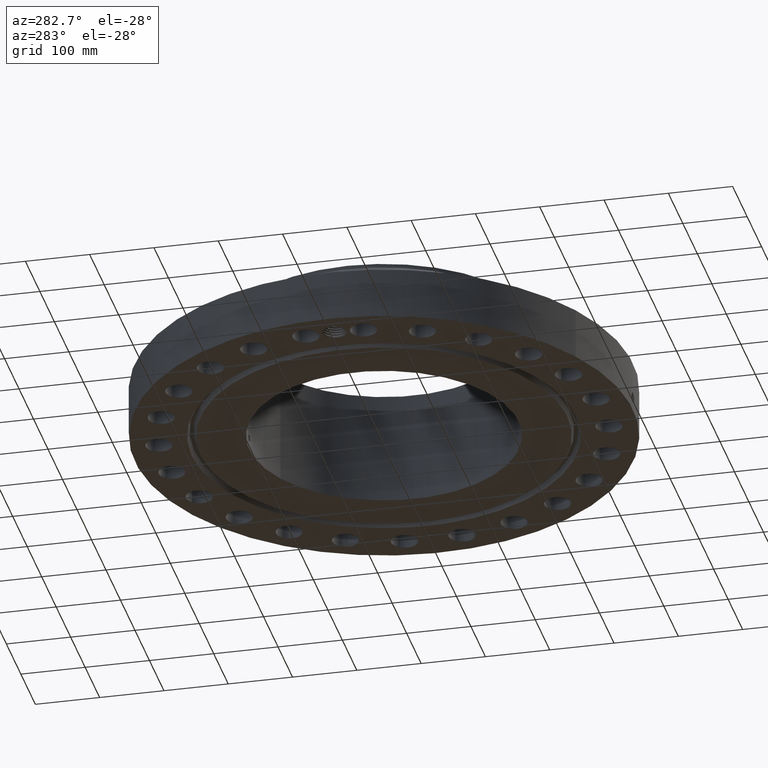
[diagram: clean part render]
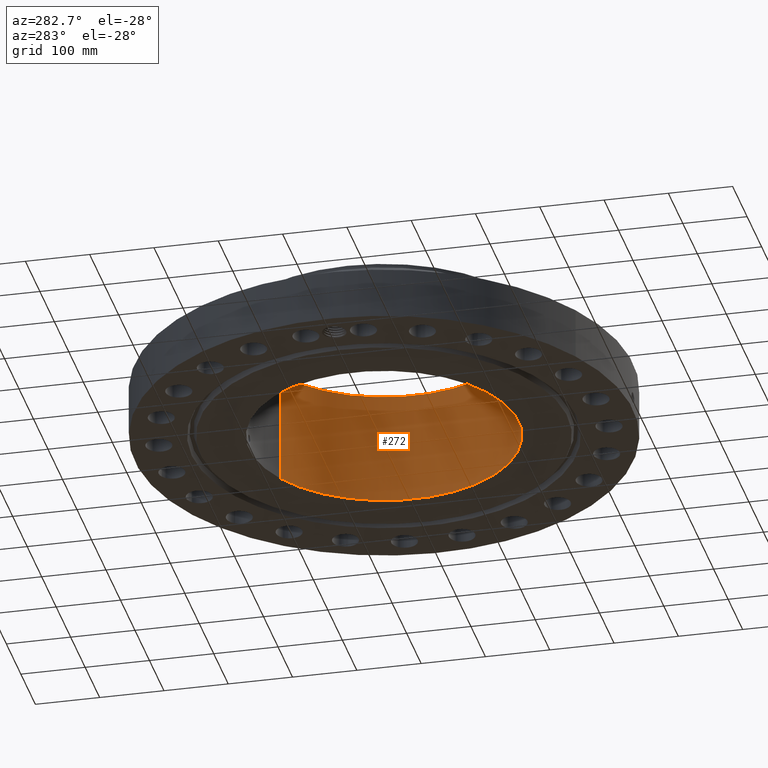
[diagram: same view with one face highlighted and labeled with its STEP entity id]
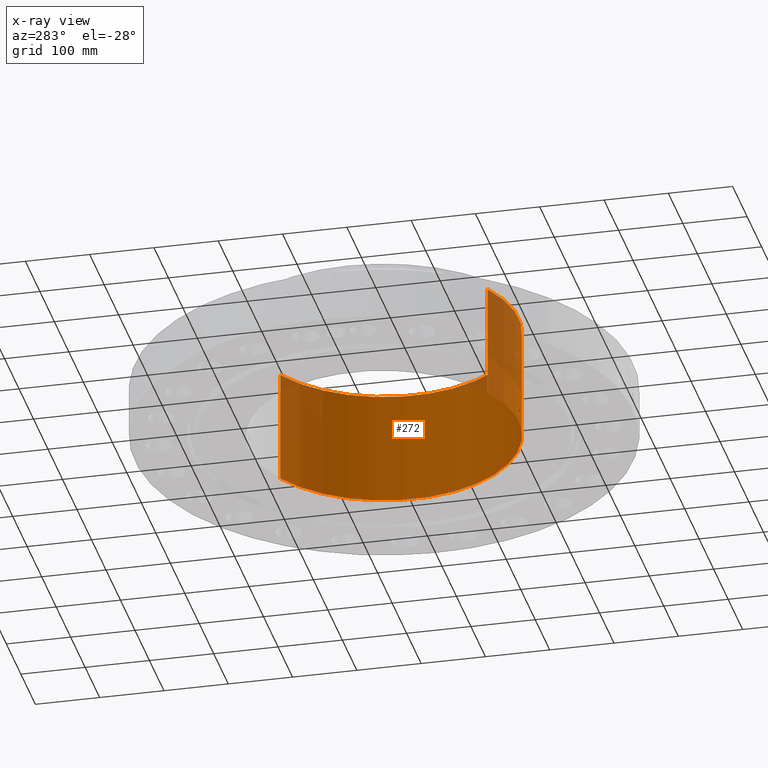
[diagram: x-ray of the same camera — body ghosted, the highlighted face saturated]
A machine part, auxiliary view. The second image highlights one B-rep face of the part: STEP entity #272.
The next image is the same camera in x-ray: the body ghosted, the highlighted face saturated — about 10% of this face is hidden behind the body in this view.
In plain terms, the highlighted cylindrical surface (partial cylindrical patch) has radius 209.55 mm, axis along (0, 0, -1).
Its self-contained STEP definition (entity closure, byte-faithful):
#232=AXIS2_PLACEMENT_3D('Cylinder Axis2P3D',#229,#230,#231) ;
#236=AXIS2_PLACEMENT_3D('Circle Axis2P3D',#234,#235,$) ;
#252=AXIS2_PLACEMENT_3D('Circle Axis2P3D',#250,#251,$) ;
#81=CARTESIAN_POINT('Control Point',(0.219395640473,-8.24708224486,0.630143615351)) ;
#82=CARTESIAN_POINT('Control Point',(0.19444317711,-8.24774605074,0.584468437538)) ;
#83=CARTESIAN_POINT('Control Point',(0.157605883801,-8.24863158637,0.545289194378)) ;
#84=CARTESIAN_POINT('Control Point',(0.111109607939,-8.24949278363,0.516757610524)) ;
#85=CARTESIAN_POINT('Control Point',(0.0336754004948,-8.2501779888,0.494117709491)) ;
#86=CARTESIAN_POINT('Control Point',(-0.0446690011562,-8.2499412276,0.501943340072)) ;
#87=CARTESIAN_POINT('Control Point',(-0.0702981658894,-8.24975742737,0.507955592299)) ;
#88=CARTESIAN_POINT('Control Point',(-0.143953515904,-8.24894517953,0.535786260454)) ;
#89=CARTESIAN_POINT('Control Point',(-0.203240709338,-8.24761932397,0.590498544337)) ;
#90=CARTESIAN_POINT('Control Point',(-0.232206730902,-8.2467496542,0.636736019688)) ;
#91=CARTESIAN_POINT('Control Point',(-0.255840009403,-8.24603466111,0.714883314645)) ;
#92=CARTESIAN_POINT('Control Point',(-0.248283666439,-8.24626308008,0.794249659747)) ;
#93=CARTESIAN_POINT('Control Point',(-0.242049877743,-8.24645425883,0.820813529062)) ;
#94=CARTESIAN_POINT('Control Point',(-0.232316018872,-8.24673852637,0.846205790637)) ;
#95=CARTESIAN_POINT('Control Point',(-0.219395640473,-8.24708224486,0.869856384655)) ;
#96=CARTESIAN_POINT('Vertex',(0.219395640473,-8.24708224486,0.630143615351)) ;
#98=CARTESIAN_POINT('Vertex',(-0.219395640473,-8.24708224486,0.869856384655)) ;
#206=CARTESIAN_POINT('Control Point',(-0.219395640473,-8.24708224486,0.869856384655)) ;
#207=CARTESIAN_POINT('Control Point',(-0.194443177114,-8.24774605074,0.91553156246)) ;
#208=CARTESIAN_POINT('Control Point',(-0.157605883813,-8.24863158637,0.954710805615)) ;
#209=CARTESIAN_POINT('Control Point',(-0.111109607925,-8.24949278363,0.983242389485)) ;
#210=CARTESIAN_POINT('Control Point',(-0.0336754004932,-8.2501779888,1.00588229051)) ;
#211=CARTESIAN_POINT('Control Point',(0.0446690011462,-8.2499412276,0.998056659936)) ;
#212=CARTESIAN_POINT('Control Point',(0.0702981658919,-8.24975742737,0.992044407705)) ;
#213=CARTESIAN_POINT('Control Point',(0.143953515871,-8.24894517953,0.964213739564)) ;
#214=CARTESIAN_POINT('Control Point',(0.203240709284,-8.24761932397,0.909501455719)) ;
#215=CARTESIAN_POINT('Control Point',(0.232206730921,-8.2467496542,0.863263980255)) ;
#216=CARTESIAN_POINT('Control Point',(0.255840009399,-8.24603466111,0.785116685331)) ;
#217=CARTESIAN_POINT('Control Point',(0.248283666439,-8.24626308008,0.705750340264)) ;
#218=CARTESIAN_POINT('Control Point',(0.242049877742,-8.24645425883,0.679186470943)) ;
#219=CARTESIAN_POINT('Control Point',(0.232316018871,-8.24673852637,0.653794209369)) ;
#220=CARTESIAN_POINT('Control Point',(0.219395640473,-8.24708224486,0.630143615351)) ;
#229=CARTESIAN_POINT('Axis2P3D Location',(0.,0.,3.49750000001)) ;
#234=CARTESIAN_POINT('Axis2P3D Location',(0.,0.,6.99500000003)) ;
#238=CARTESIAN_POINT('Vertex',(3.9552606935,7.24005613562,6.99500000003)) ;
#240=CARTESIAN_POINT('Vertex',(-3.9552606935,-7.24005613562,6.99500000003)) ;
#243=CARTESIAN_POINT('Line Origine',(3.9552606935,7.24005613562,3.49750000001)) ;
#247=CARTESIAN_POINT('Vertex',(3.9552606935,7.24005613562,-7.04947911069E-014)) ;
#250=CARTESIAN_POINT('Axis2P3D Location',(0.,0.,-7.04947911069E-014)) ;
#254=CARTESIAN_POINT('Vertex',(-3.9552606935,-7.24005613562,-7.04947911069E-014)) ;
#257=CARTESIAN_POINT('Line Origine',(-3.9552606935,-7.24005613562,3.49750000001)) ;
#230=DIRECTION('Axis2P3D Direction',(0.,0.,-0.0393700787402)) ;
#231=DIRECTION('Axis2P3D XDirection',(-0.0188750212049,-0.0345504945626,0.)) ;
#235=DIRECTION('Axis2P3D Direction',(0.,0.,-0.0393700787402)) ;
#244=DIRECTION('Vector Direction',(0.,0.,-0.0393700787402)) ;
#251=DIRECTION('Axis2P3D Direction',(0.,0.,-0.0393700787402)) ;
#258=DIRECTION('Vector Direction',(0.,0.,-0.0393700787402)) ;
#245=VECTOR('Line Direction',#244,0.0393700787402) ;
#259=VECTOR('Line Direction',#258,0.0393700787402) ;
#263=ORIENTED_EDGE('',*,*,#242,.F.) ;
#264=ORIENTED_EDGE('',*,*,#249,.T.) ;
#265=ORIENTED_EDGE('',*,*,#256,.T.) ;
#266=ORIENTED_EDGE('',*,*,#261,.F.) ;
#269=ORIENTED_EDGE('',*,*,#100,.F.) ;
#270=ORIENTED_EDGE('',*,*,#221,.F.) ;
#271=FACE_BOUND('',#268,.T.) ;
#272=ADVANCED_FACE('PartBody',(#267,#271),#233,.F.) ;
#80=B_SPLINE_CURVE_WITH_KNOTS('',5,(#81,#82,#83,#84,#85,#86,#87,#88,#89,#90,#91,#92,#93,#94,#95),.UNSPECIFIED.,.F.,.U.,(6,3,3,3,6),(0.,9.34859402204,14.0228129969,23.372845985,28.2135452977),.UNSPECIFIED.) ;
#205=B_SPLINE_CURVE_WITH_KNOTS('',5,(#206,#207,#208,#209,#210,#211,#212,#213,#214,#215,#216,#217,#218,#219,#220),.UNSPECIFIED.,.F.,.U.,(6,3,3,3,6),(0.,9.34859402049,14.0228129948,23.3728459768,28.2135452894),.UNSPECIFIED.) ;
#237=CIRCLE('generated circle',#236,8.25000000003) ;
#253=CIRCLE('generated circle',#252,8.25000000003) ;
#233=CYLINDRICAL_SURFACE('generated cylinder',#232,8.25000000003) ;
#100=EDGE_CURVE('',#97,#99,#80,.T.) ;
#221=EDGE_CURVE('',#99,#97,#205,.T.) ;
#242=EDGE_CURVE('',#239,#241,#237,.T.) ;
#249=EDGE_CURVE('',#239,#248,#246,.T.) ;
#256=EDGE_CURVE('',#248,#255,#253,.T.) ;
#261=EDGE_CURVE('',#241,#255,#260,.T.) ;
#262=EDGE_LOOP('',(#263,#264,#265,#266)) ;
#268=EDGE_LOOP('',(#269,#270)) ;
#267=FACE_OUTER_BOUND('',#262,.T.) ;
#246=LINE('Line',#243,#245) ;
#260=LINE('Line',#257,#259) ;
#97=VERTEX_POINT('',#96) ;
#99=VERTEX_POINT('',#98) ;
#239=VERTEX_POINT('',#238) ;
#241=VERTEX_POINT('',#240) ;
#248=VERTEX_POINT('',#247) ;
#255=VERTEX_POINT('',#254) ;